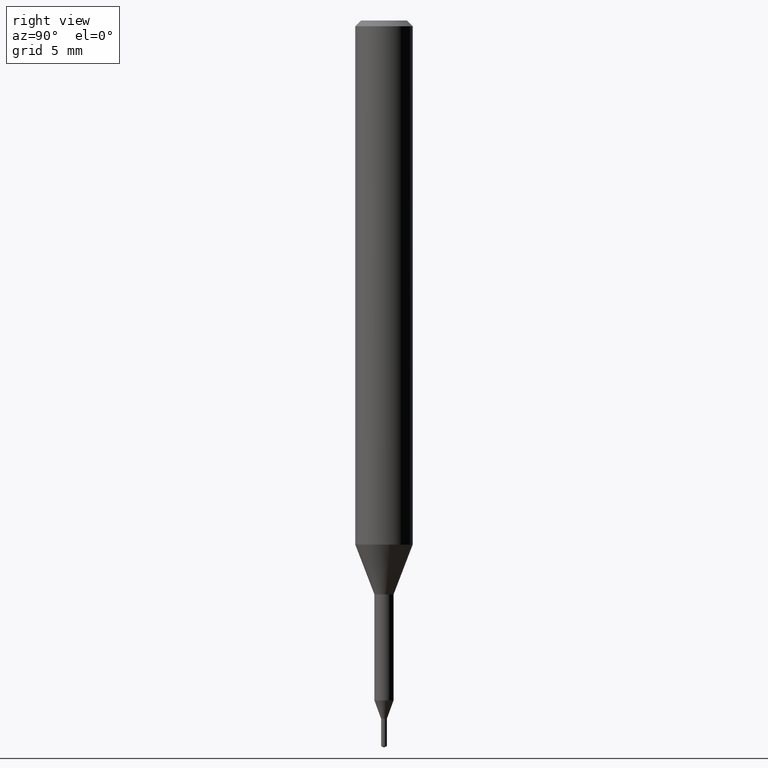
[diagram: clean part render]
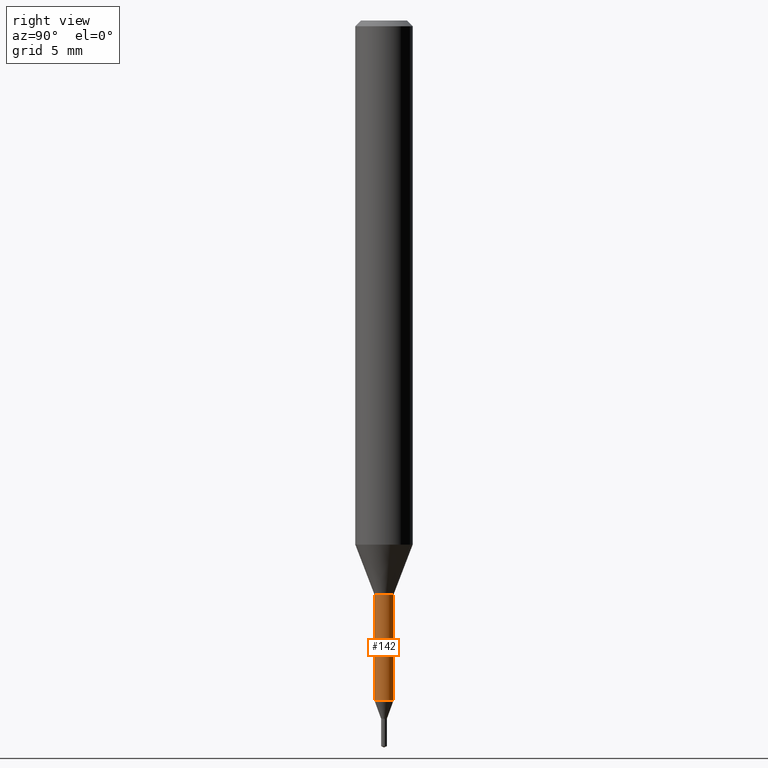
[diagram: same view with one face highlighted and labeled with its STEP entity id]
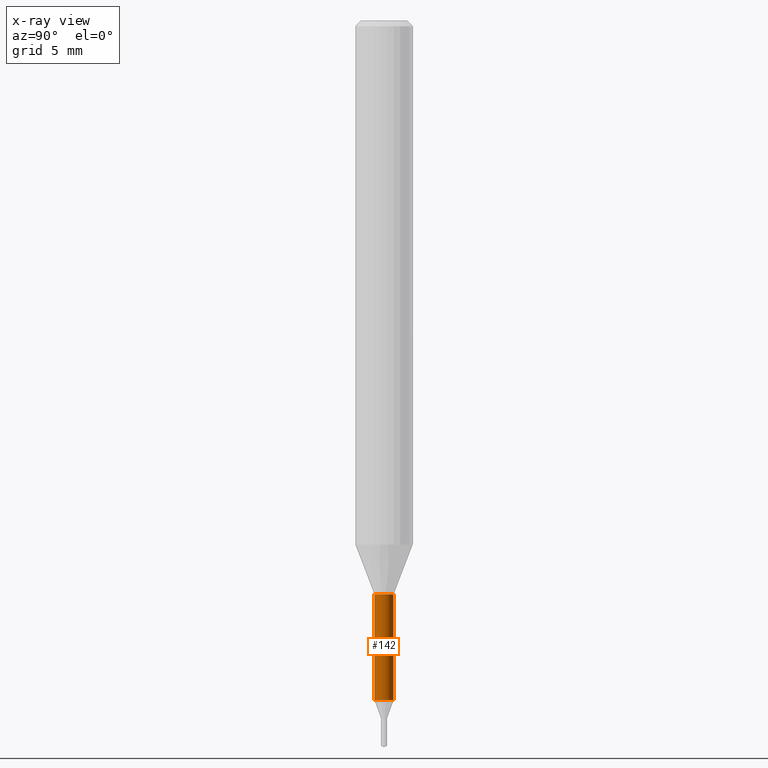
[diagram: x-ray of the same camera — body ghosted, the highlighted face saturated]
A machine part, right view. The second image highlights one B-rep face of the part: STEP entity #142.
The next image is the same camera in x-ray: the body ghosted, the highlighted face saturated — about 0% of this face is hidden behind the body in this view.
In plain terms, the highlighted cylindrical surface (edge-blend (fillet) strip) has radius 0.5 mm, axis along (-0, -0, 1).
Its self-contained STEP definition (entity closure, byte-faithful):
#142=ADVANCED_FACE('',(#324),#325,.T.);
#160=EDGE_CURVE('',#186,#246,#345,.T.);
#184=VERTEX_POINT('',#372);
#186=VERTEX_POINT('',#374);
#204=VERTEX_POINT('',#393);
#240=EDGE_CURVE('',#184,#186,#436,.T.);
#244=EDGE_CURVE('',#204,#246,#440,.T.);
#246=VERTEX_POINT('',#442);
#250=EDGE_CURVE('',#204,#184,#446,.T.);
#324=FACE_OUTER_BOUND('',#525,.T.);
#325=CYLINDRICAL_SURFACE('',#526,0.49995);
#345=LINE('',#552,#553);
#372=CARTESIAN_POINT('',(0.0,0.49995,-35.538));
#374=CARTESIAN_POINT('',(6.12241946593498E-017,-0.49995,-35.538));
#393=CARTESIAN_POINT('',(0.0,0.49995,-30.0));
#436=CIRCLE('',#664,0.49995);
#440=CIRCLE('',#669,0.49995);
#442=CARTESIAN_POINT('',(6.12241946593498E-017,-0.49995,-30.0));
#446=LINE('',#676,#677);
#525=EDGE_LOOP('',(#755,#756,#757,#758));
#526=AXIS2_PLACEMENT_3D('',#759,#760,#761);
#552=CARTESIAN_POINT('',(6.12241946593498E-017,-0.49995,-32.769));
#553=VECTOR('',#783,1.0);
#664=AXIS2_PLACEMENT_3D('',#903,#904,#905);
#669=AXIS2_PLACEMENT_3D('',#906,#907,#908);
#676=CARTESIAN_POINT('',(-6.12241946593498E-017,0.49995,-32.769));
#677=VECTOR('',#909,1.0);
#755=ORIENTED_EDGE('',*,*,#250,.F.);
#756=ORIENTED_EDGE('',*,*,#244,.T.);
#757=ORIENTED_EDGE('',*,*,#160,.F.);
#758=ORIENTED_EDGE('',*,*,#240,.F.);
#759=CARTESIAN_POINT('',(0.0,0.0,-32.769));
#760=DIRECTION('',(-0.0,-0.0,1.0));
#761=DIRECTION('',(0.0,1.0,0.0));
#783=DIRECTION('',(-0.0,-0.0,1.0));
#903=CARTESIAN_POINT('',(0.0,0.0,-35.538));
#904=DIRECTION('',(0.0,0.0,-1.0));
#905=DIRECTION('',(0.0,1.0,0.0));
#906=CARTESIAN_POINT('',(0.0,0.0,-30.0));
#907=DIRECTION('',(0.0,0.0,-1.0));
#908=DIRECTION('',(0.0,1.0,0.0));
#909=DIRECTION('',(0.0,0.0,-1.0));